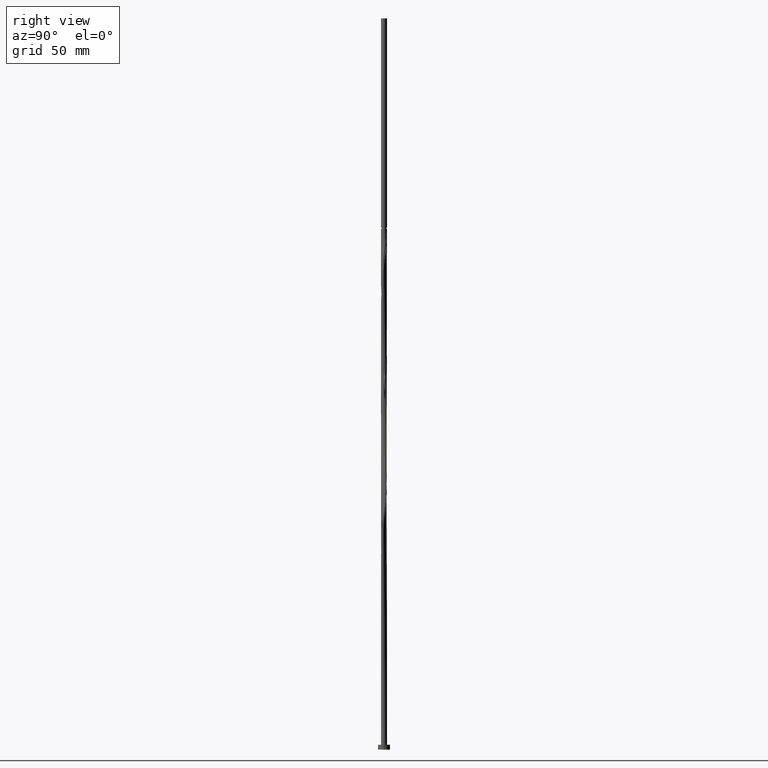
[diagram: clean part render]
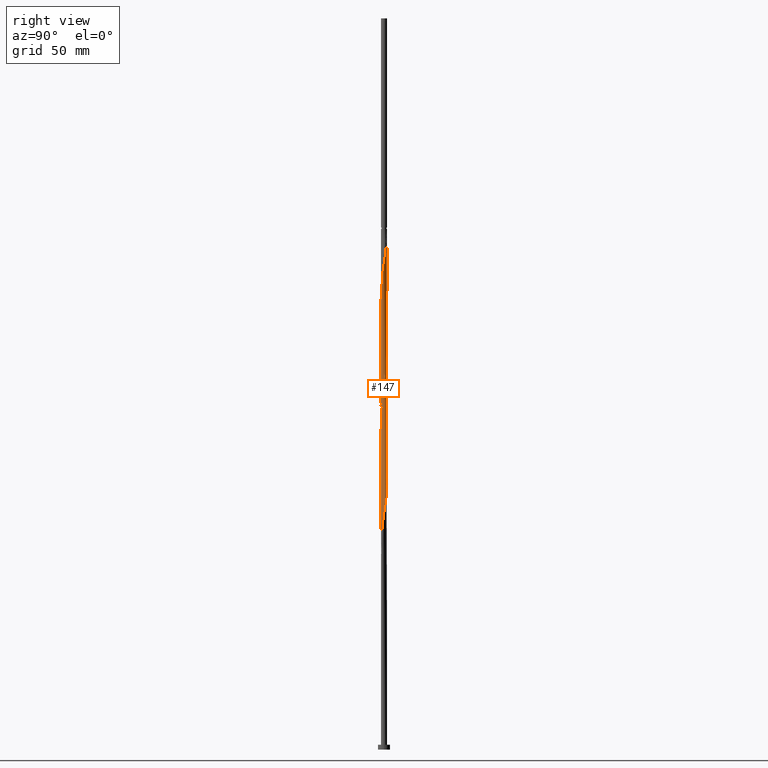
[diagram: same view with one face highlighted and labeled with its STEP entity id]
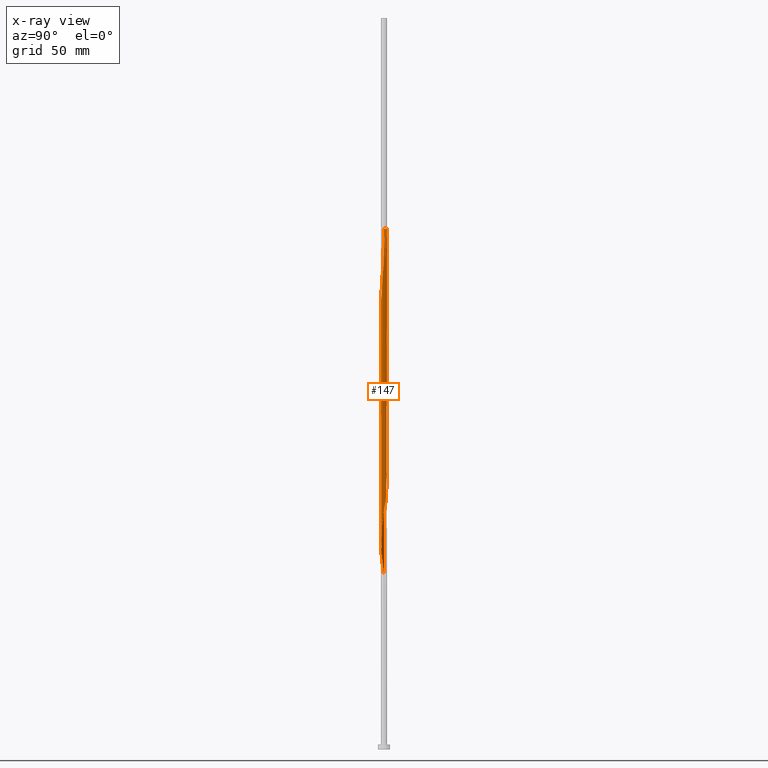
[diagram: x-ray of the same camera — body ghosted, the highlighted face saturated]
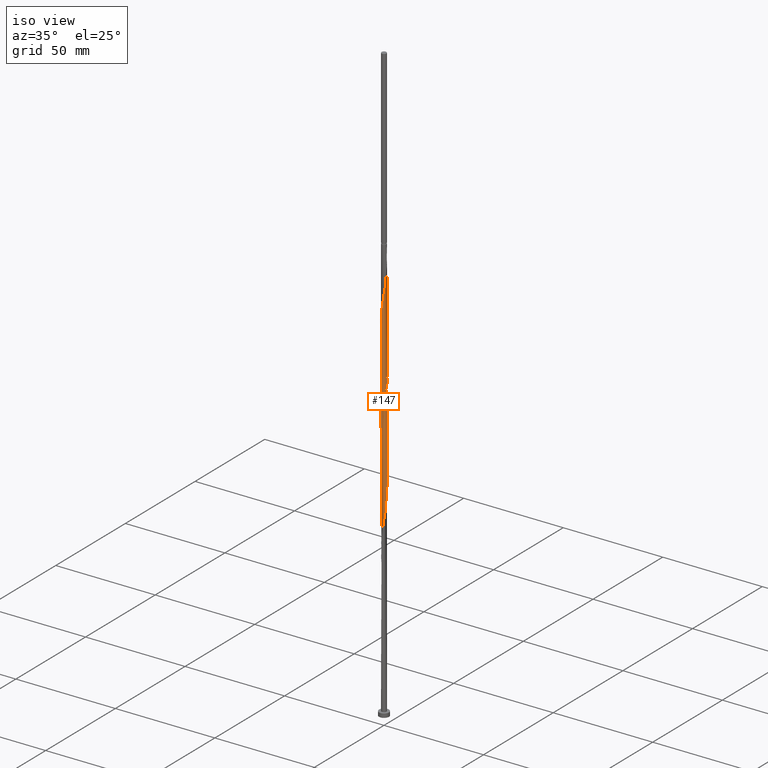
[diagram: same view with one face highlighted and labeled with its STEP entity id]
A machine part, right view. The second image highlights one B-rep face of the part: STEP entity #147.
The next image is the same camera in x-ray: the body ghosted, the highlighted face saturated — about 0% of this face is hidden behind the body in this view.
A second angle (iso view) of the same face is appended — the face is thin or edge-on in the first view.
In plain terms, the highlighted cylindrical surface (bore or boss wall) has radius 1.25 mm, axis along (-0, -0, -1).
Its self-contained STEP definition (entity closure, byte-faithful):
#4 = CARTESIAN_POINT ( 'NONE',  ( -0.3867712106542924855, -1.196972960074379477, 134.6808331352045229 ) ) ;
#14 = CARTESIAN_POINT ( 'NONE',  ( -1.196972960074379477, 0.3867712106542924855, 121.5558331352044945 ) ) ;
#19 = CARTESIAN_POINT ( 'NONE',  ( -1.250000000000000000, -5.391935684651194892E-16, 176.6678502131105688 ) ) ;
#23 = CARTESIAN_POINT ( 'NONE',  ( 0.7556207566157803202, 0.9957596457837581960, 158.1183331352045514 ) ) ;
#24 = CARTESIAN_POINT ( 'NONE',  ( 0.1107225078990204115, 1.253027039925620034, 110.3058331352045087 ) ) ;
#26 = CARTESIAN_POINT ( 'NONE',  ( 0.7556207566157806532, -0.9957596457837601944, 191.8683331352045229 ) ) ;
#33 = CARTESIAN_POINT ( 'NONE',  ( 1.112834696026721470, 0.5692968815294134899, 154.3683331352045514 ) ) ;
#34 = CARTESIAN_POINT ( 'NONE',  ( 1.250000000000000000, -1.513100290744677813E-15, 150.4178502131105404 ) ) ;
#63 = CARTESIAN_POINT ( 'NONE',  ( -0.8678159233401294692, -0.9106216336863119931, 78.43083313520453714 ) ) ;
#68 = ORIENTED_EDGE ( 'NONE', *, *, #716, .F. ) ;
#82 = CIRCLE ( 'NONE', #1542, 1.249999999999985789 ) ;
#84 = VERTEX_POINT ( 'NONE', #1481 ) ;
#105 = FACE_OUTER_BOUND ( 'NONE', #127, .T. ) ;
#116 = CARTESIAN_POINT ( 'NONE',  ( -0.6946832383535922473, -1.048690342708838319, 181.5558331352044377 ) ) ;
#122 = CARTESIAN_POINT ( 'NONE',  ( 0.03007788792010840720, -1.249638075867675280, 137.4933331352045229 ) ) ;
#126 = CARTESIAN_POINT ( 'NONE',  ( -0.1708782837392381071, -1.246249111809732080, 185.3058331352045229 ) ) ;
#127 = EDGE_LOOP ( 'NONE', ( #801, #1216, #761, #1506, #519, #68, #655, #498 ) ) ;
#132 = CARTESIAN_POINT ( 'NONE',  ( 0.5692968815294134899, -1.112834696026721470, 141.2433331352044945 ) ) ;
#141 = CARTESIAN_POINT ( 'NONE',  ( 1.250000000000000000, -1.513100290744678010E-15, 150.4178502131105404 ) ) ;
#147 = ADVANCED_FACE ( 'NONE', ( #105 ), #799, .T. ) ;
#151 = CARTESIAN_POINT ( 'NONE',  ( 1.246249111809730747, 0.1708782837392372467, 151.5558331352044945 ) ) ;
#152 = CARTESIAN_POINT ( 'NONE',  ( 1.196972960074379477, -0.3867712106542925965, 147.8058331352044945 ) ) ;
#160 = CARTESIAN_POINT ( 'NONE',  ( -0.2487468592766895192, 1.225000000000332268, 214.3683331352045229 ) ) ;
#161 = CARTESIAN_POINT ( 'NONE',  ( -0.3073944042222372386, 1.211614080577168462, 113.1183331352045087 ) ) ;
#163 = CARTESIAN_POINT ( 'NONE',  ( -1.196972960074381920, -0.3867712106542926520, 175.9308331352044661 ) ) ;
#169 = CARTESIAN_POINT ( 'NONE',  ( 0.8678159233401294692, 0.9106216336863117711, 157.1808331352044945 ) ) ;
#172 = CARTESIAN_POINT ( 'NONE',  ( 1.246249111809732080, -0.1708782837392381904, 198.4308331352045229 ) ) ;
#178 = CARTESIAN_POINT ( 'NONE',  ( 1.138935308977792271, -0.5150984002728619116, 94.36833313520452293 ) ) ;
#185 = CARTESIAN_POINT ( 'NONE',  ( 0.9957596457837581960, -0.7556207566157803202, 92.49333313520453714 ) ) ;
#193 = CARTESIAN_POINT ( 'NONE',  ( 0.6946832383535906930, -1.048690342708837209, 89.68083313520450872 ) ) ;
#195 = DIRECTION ( 'NONE',  ( -0.000000000000000000, -0.000000000000000000, -1.000000000000000000 ) ) ;
#263 = CARTESIAN_POINT ( 'NONE',  ( 0.5150984002728620226, -1.138935308977793603, 189.9933331352045229 ) ) ;
#269 = CARTESIAN_POINT ( 'NONE',  ( 0.1708782837392373299, -1.246249111809730747, 138.4308331352044945 ) ) ;
#272 = CARTESIAN_POINT ( 'NONE',  ( -1.080897657881206397, -0.6434255898914315042, 177.8058331352045229 ) ) ;
#277 = CARTESIAN_POINT ( 'NONE',  ( 0.9582531330244833390, 0.8026524360199517316, 156.2433331352044945 ) ) ;
#285 = CARTESIAN_POINT ( 'NONE',  ( -0.8026524360199517316, 0.9582531330244832279, 169.3683331352045229 ) ) ;
#286 = CARTESIAN_POINT ( 'NONE',  ( -0.8026524360199517316, 0.9582531330244832279, 116.8683331352045371 ) ) ;
#290 = VECTOR ( 'NONE', #1805, 1000.000000000000000 ) ;
#296 = CARTESIAN_POINT ( 'NONE',  ( -1.080897657881204621, 0.6434255898914308380, 119.6808331352045229 ) ) ;
#303 = CARTESIAN_POINT ( 'NONE',  ( -0.03007788792010857026, 1.249638075867675280, 163.7433331352045229 ) ) ;
#306 = CARTESIAN_POINT ( 'NONE',  ( 0.1708782837392383291, 1.246249111809732080, 211.5558331352045514 ) ) ;
#319 = CARTESIAN_POINT ( 'NONE',  ( 0.1708782837392373299, -1.246249111809730747, 85.93083313520452293 ) ) ;
#330 = CARTESIAN_POINT ( 'NONE',  ( 1.246249111809730747, 0.1708782837392372467, 99.05583313520452293 ) ) ;
#334 = EDGE_CURVE ( 'NONE', #530, #1654, #1634, .T. ) ;
#365 = VERTEX_POINT ( 'NONE', #160 ) ;
#376 = VERTEX_POINT ( 'NONE', #1403 ) ;
#396 = CARTESIAN_POINT ( 'NONE',  ( 0.6434255898914315042, -1.080897657881206397, 190.9308331352044945 ) ) ;
#397 =( BOUNDED_CURVE ( )  B_SPLINE_CURVE ( 2, ( #141, #1262, #404, #152, #962, #415, #556, #707, #1520, #862, #132, #825, #981, #269, #122, #991, #1670, #4, #1244, #1000, #564, #1144, #1546, #843, #1795, #1387, #423, #1404, #1679, #1272, #1537, #14, #547, #296, #1253, #690, #286, #1116, #1413, #854, #161, #717, #1282, #24, #581, #1696, #1292, #1017, #450, #469, #1033, #621, #870, #1583, #1589, #330, #886, #1041, #1162, #1428, #178, #757, #185, #733, #1420, #193, #1443, #1574, #1026, #319, #748, #1434, #1324, #740, #892, #591, #1596, #63, #1185, #1450, #1721, #1306, #1735, #1316, #484, #599, #1176 ),
 .UNSPECIFIED., .F., .F. ) 
 B_SPLINE_CURVE_WITH_KNOTS ( ( 3, 2, 2, 2, 2, 2, 2, 2, 2, 2, 2, 2, 2, 2, 2, 2, 2, 2, 2, 2, 2, 2, 2, 2, 2, 2, 2, 2, 2, 2, 2, 2, 2, 2, 2, 2, 2, 2, 2, 2, 2, 2, 2, 3 ),
 ( 0.5545303401299220836, 0.5625000000000000000, 0.5714285714285713969, 0.5803571428571429047, 0.5892857142857143016, 0.5982142857142856984, 0.6071428571428570953, 0.6160714285714286031, 0.6250000000000000000, 0.6339285714285713969, 0.6428571428571429047, 0.6517857142857143016, 0.6607142857142856984, 0.6696428571428570953, 0.6785714285714286031, 0.6875000000000000000, 0.6964285714285713969, 0.7053571428571429047, 0.7142857142857143016, 0.7232142857142856984, 0.7321428571428570953, 0.7410714285714286031, 0.7500000000000000000, 0.7589285714285713969, 0.7678571428571429047, 0.7767857142857143016, 0.7857142857142856984, 0.7946428571428570953, 0.8035714285714286031, 0.8125000000000000000, 0.8214285714285713969, 0.8303571428571429047, 0.8392857142857143016, 0.8482142857142856984, 0.8571428571428570953, 0.8660714285714286031, 0.8750000000000000000, 0.8839285714285713969, 0.8928571428571429047, 0.9017857142857143016, 0.9107142857142856984, 0.9196428571428570953, 0.9285714285714286031, 0.9295303401299220836 ),
 .UNSPECIFIED. ) 
 CURVE ( )  GEOMETRIC_REPRESENTATION_ITEM ( )  RATIONAL_B_SPLINE_CURVE ( ( 0.9079949616362252840, 0.9039886423360883327, 0.9090909090909551349, 0.9033747362666300074, 0.9090909090909551349, 0.9033747362666300074, 0.9090909090909551349, 0.9033747362666300074, 0.9090909090909551349, 0.9033747362666300074, 0.9090909090909551349, 0.9033747362666300074, 0.9090909090909551349, 0.9033747362666300074, 0.9090909090909551349, 0.9033747362666300074, 0.9090909090909551349, 0.9033747362666300074, 0.9090909090909551349, 0.9033747362666300074, 0.9090909090909551349, 0.9033747362666300074, 0.9090909090909551349, 0.9033747362666300074, 0.9090909090909551349, 0.9033747362666300074, 0.9090909090909551349, 0.9033747362666300074, 0.9090909090909551349, 0.9033747362666300074, 0.9090909090909551349, 0.9033747362666300074, 0.9090909090909551349, 0.9033747362666300074, 0.9090909090909551349, 0.9033747362666300074, 0.9090909090909551349, 0.9033747362666300074, 0.9090909090909551349, 0.9033747362666300074, 0.9090909090909551349, 0.9033747362666300074, 0.9090909090909551349, 0.9033747362666300074, 0.9090909090909551349, 0.9033747362666300074, 0.9090909090909551349, 0.9033747362666300074, 0.9090909090909551349, 0.9033747362666300074, 0.9090909090909551349, 0.9033747362666300074, 0.9090909090909551349, 0.9033747362666300074, 0.9090909090909551349, 0.9033747362666300074, 0.9090909090909551349, 0.9033747362666300074, 0.9090909090909551349, 0.9033747362666300074, 0.9090909090909551349, 0.9033747362666300074, 0.9090909090909551349, 0.9033747362666300074, 0.9090909090909551349, 0.9033747362666300074, 0.9090909090909551349, 0.9033747362666300074, 0.9090909090909551349, 0.9033747362666300074, 0.9090909090909551349, 0.9033747362666300074, 0.9090909090909551349, 0.9033747362666300074, 0.9090909090909551349, 0.9033747362666300074, 0.9090909090909551349, 0.9033747362666300074, 0.9090909090909551349, 0.9033747362666300074, 0.9090909090909551349, 0.9033747362666300074, 0.9090909090909551349, 0.9033747362666300074, 0.9090909090909551349, 0.9084770030214969205, 0.9079949616362252840 ) ) 
 REPRESENTATION_ITEM ( '' )  );
#404 = CARTESIAN_POINT ( 'NONE',  ( 1.224999999999999645, -0.2487468592766566566, 148.7433331352044661 ) ) ;
#409 = CARTESIAN_POINT ( 'NONE',  ( 0.9957596457837601944, 0.7556207566157806532, 204.9933331352045229 ) ) ;
#415 = CARTESIAN_POINT ( 'NONE',  ( 1.080897657881204621, -0.6434255898914309491, 145.9308331352044945 ) ) ;
#423 = CARTESIAN_POINT ( 'NONE',  ( -1.211614080577168462, -0.3073944042222370721, 126.2433331352045229 ) ) ;
#430 = CARTESIAN_POINT ( 'NONE',  ( -0.4439105247052368419, 1.176979049344605066, 166.5558331352044661 ) ) ;
#439 = CARTESIAN_POINT ( 'NONE',  ( -0.3073944042222372386, 1.211614080577168462, 165.6183331352045229 ) ) ;
#442 = CARTESIAN_POINT ( 'NONE',  ( 0.3073944042222380713, 1.211614080577169350, 210.6183331352044945 ) ) ;
#450 = CARTESIAN_POINT ( 'NONE',  ( 0.7556207566157803202, 0.9957596457837581960, 105.6183331352045371 ) ) ;
#452 = CARTESIAN_POINT ( 'NONE',  ( -0.4439105247052376746, -1.176979049344606620, 183.4308331352045798 ) ) ;
#469 = CARTESIAN_POINT ( 'NONE',  ( 0.8678159233401294692, 0.9106216336863117711, 104.6808331352044945 ) ) ;
#471 = CARTESIAN_POINT ( 'NONE',  ( -1.250000000000000000, 0.000000000000000000, 301.0000000000000000 ) ) ;
#484 = CARTESIAN_POINT ( 'NONE',  ( -1.249638075867675280, -0.03007788792010846271, 71.86833313520455135 ) ) ;
#498 = ORIENTED_EDGE ( 'NONE', *, *, #334, .F. ) ;
#517 = CARTESIAN_POINT ( 'NONE',  ( -1.250000000000000000, -5.391935684651194892E-16, 176.6678502131105688 ) ) ;
#519 = ORIENTED_EDGE ( 'NONE', *, *, #1551, .F. ) ;
#530 = VERTEX_POINT ( 'NONE', #19 ) ;
#547 = CARTESIAN_POINT ( 'NONE',  ( -1.138935308977792271, 0.5150984002728618005, 120.6183331352045371 ) ) ;
#550 = CARTESIAN_POINT ( 'NONE',  ( -0.8026524360199528418, -0.9582531330244842271, 180.6183331352045514 ) ) ;
#556 = CARTESIAN_POINT ( 'NONE',  ( 0.9957596457837581960, -0.7556207566157803202, 144.9933331352045798 ) ) ;
#563 = CARTESIAN_POINT ( 'NONE',  ( -1.080897657881204621, 0.6434255898914308380, 172.1808331352045229 ) ) ;
#564 = CARTESIAN_POINT ( 'NONE',  ( -0.7556207566157802091, -0.9957596457837581960, 131.8683331352045798 ) ) ;
#580 = CARTESIAN_POINT ( 'NONE',  ( -0.9957596457837584181, 0.7556207566157800981, 171.2433331352045798 ) ) ;
#581 = CARTESIAN_POINT ( 'NONE',  ( 0.2487468592766567677, 1.224999999999999645, 109.3683331352045229 ) ) ;
#583 = CARTESIAN_POINT ( 'NONE',  ( 1.112834696026722581, -0.5692968815294148222, 195.6183331352045229 ) ) ;
#590 = CARTESIAN_POINT ( 'NONE',  ( 1.176979049344605066, 0.4439105247052363423, 153.4308331352044661 ) ) ;
#591 = CARTESIAN_POINT ( 'NONE',  ( -0.6434255898914309491, -1.080897657881204621, 80.30583313520449451 ) ) ;
#593 = CARTESIAN_POINT ( 'NONE',  ( -0.1107225078990183159, 1.253027039925622033, 213.4308331352044945 ) ) ;
#599 = CARTESIAN_POINT ( 'NONE',  ( -1.250000000000000000, -0.01504112145798668781, 71.76821290133568709 ) ) ;
#611 = VECTOR ( 'NONE', #195, 1000.000000000000000 ) ;
#621 = CARTESIAN_POINT ( 'NONE',  ( 1.048690342708837209, 0.6946832383535905819, 102.8058331352045229 ) ) ;
#652 = CARTESIAN_POINT ( 'NONE',  ( -1.250000000000000000, 1.388096937501899354E-15, 71.66785021311058301 ) ) ;
#655 = ORIENTED_EDGE ( 'NONE', *, *, #716, .T. ) ;
#672 = DIRECTION ( 'NONE',  ( -0.000000000000000000, -0.000000000000000000, -1.000000000000000000 ) ) ;
#674 = CARTESIAN_POINT ( 'NONE',  ( -1.250000000000001776, -8.545005341073456909E-16, 173.3188160572984486 ) ) ;
#685 = CARTESIAN_POINT ( 'NONE',  ( -0.9106216336863137695, -0.8678159233401304684, 179.6808331352044377 ) ) ;
#690 = CARTESIAN_POINT ( 'NONE',  ( -0.9106216336863119931, 0.8678159233401292472, 117.8058331352045087 ) ) ;
#702 = CARTESIAN_POINT ( 'NONE',  ( 1.250000000000000000, 1.530808498934191571E-16, 301.0000000000000000 ) ) ;
#707 = CARTESIAN_POINT ( 'NONE',  ( 0.9106216336863119931, -0.8678159233401294692, 144.0558331352044661 ) ) ;
#716 = EDGE_CURVE ( 'NONE', #376, #1654, #1256, .T. ) ;
#717 = CARTESIAN_POINT ( 'NONE',  ( -0.1708782837392375242, 1.246249111809730747, 112.1808331352045087 ) ) ;
#724 = CARTESIAN_POINT ( 'NONE',  ( -1.249999999999999556, 0.1256297269074045653, 175.8295791341469680 ) ) ;
#726 = CARTESIAN_POINT ( 'NONE',  ( -0.2487468592766895192, 1.225000000000332268, 214.3683331352045229 ) ) ;
#730 = EDGE_CURVE ( 'NONE', #84, #365, #82, .T. ) ;
#733 = CARTESIAN_POINT ( 'NONE',  ( 0.9106216336863119931, -0.8678159233401294692, 91.55583313520450872 ) ) ;
#740 = CARTESIAN_POINT ( 'NONE',  ( -0.3867712106542924855, -1.196972960074379477, 82.18083313520450872 ) ) ;
#748 = CARTESIAN_POINT ( 'NONE',  ( 0.03007788792010840720, -1.249638075867675280, 84.99333313520453714 ) ) ;
#750 = LINE ( 'NONE', #1178, #781 ) ;
#757 = CARTESIAN_POINT ( 'NONE',  ( 1.080897657881204621, -0.6434255898914309491, 93.43083313520452293 ) ) ;
#761 = ORIENTED_EDGE ( 'NONE', *, *, #1051, .F. ) ;
#772 =( BOUNDED_CURVE ( )  B_SPLINE_CURVE ( 2, ( #674, #1514, #1422, #163, #1098, #272, #1247, #685, #550, #116, #1798, #452, #1559, #126, #1108, #1373, #1284, #1653, #263, #396, #26, #828, #948, #1568, #583, #1662, #1146, #172, #956, #1505, #1002, #819, #965, #810, #409, #1381, #1523, #1642, #1390, #1699, #442, #306, #864, #593, #726 ),
 .UNSPECIFIED., .F., .F. ) 
 B_SPLINE_CURVE_WITH_KNOTS ( ( 3, 2, 2, 2, 2, 2, 2, 2, 2, 2, 2, 2, 2, 2, 2, 2, 2, 2, 2, 2, 2, 2, 3 ),
 ( 0.5545303401299221946, 0.5625000000000000000, 0.5714285714285713969, 0.5803571428571427937, 0.5892857142857143016, 0.5982142857142856984, 0.6071428571428572063, 0.6160714285714286031, 0.6250000000000000000, 0.6339285714285713969, 0.6428571428571427937, 0.6517857142857141906, 0.6607142857142855874, 0.6696428571428570953, 0.6785714285714284921, 0.6874999999999998890, 0.6964285714285712858, 0.7053571428571426827, 0.7142857142857141906, 0.7232142857142855874, 0.7321428571428570953, 0.7410714285714284921, 0.7499999999999998890 ),
 .UNSPECIFIED. ) 
 CURVE ( )  GEOMETRIC_REPRESENTATION_ITEM ( )  RATIONAL_B_SPLINE_CURVE ( ( 0.9079949616362316123, 0.9039886423360947720, 0.9090909090909616852, 0.9033747362666364467, 0.9090909090909616852, 0.9033747362666364467, 0.9090909090909616852, 0.9033747362666364467, 0.9090909090909616852, 0.9033747362666364467, 0.9090909090909616852, 0.9033747362666364467, 0.9090909090909616852, 0.9033747362666364467, 0.9090909090909616852, 0.9033747362666364467, 0.9090909090909616852, 0.9033747362666364467, 0.9090909090909616852, 0.9033747362666364467, 0.9090909090909616852, 0.9033747362666364467, 0.9090909090909616852, 0.9033747362666364467, 0.9090909090909616852, 0.9033747362666364467, 0.9090909090909616852, 0.9033747362666364467, 0.9090909090909616852, 0.9033747362666364467, 0.9090909090909616852, 0.9033747362666364467, 0.9090909090909616852, 0.9033747362666364467, 0.9090909090909616852, 0.9033747362666364467, 0.9090909090909616852, 0.9033747362666364467, 0.9090909090909616852, 0.9033747362666364467, 0.9090909090909616852, 0.9033747362666364467, 0.9090909090909616852, 0.9033747362666365577, 0.9090909090909615742 ) ) 
 REPRESENTATION_ITEM ( '' )  );
#781 = VECTOR ( 'NONE', #1063, 1000.000000000000000 ) ;
#799 = CYLINDRICAL_SURFACE ( 'NONE', #1058, 1.250000000000000000 ) ;
#801 = ORIENTED_EDGE ( 'NONE', *, *, #1760, .F. ) ;
#810 = CARTESIAN_POINT ( 'NONE',  ( 1.080897657881206397, 0.6434255898914312821, 204.0558331352045229 ) ) ;
#817 = CARTESIAN_POINT ( 'NONE',  ( 0.000000000000000000, 0.000000000000000000, 301.0000000000000000 ) ) ;
#819 = CARTESIAN_POINT ( 'NONE',  ( 1.196972960074381920, 0.3867712106542924855, 202.1808331352045229 ) ) ;
#825 = CARTESIAN_POINT ( 'NONE',  ( 0.4439105247052364533, -1.176979049344605066, 140.3058331352044661 ) ) ;
#828 = CARTESIAN_POINT ( 'NONE',  ( 0.8678159233401304684, -0.9106216336863137695, 192.8058331352045514 ) ) ;
#837 = CARTESIAN_POINT ( 'NONE',  ( 0.000000000000000000, 0.000000000000000000, 214.3683331352044945 ) ) ;
#843 = CARTESIAN_POINT ( 'NONE',  ( -1.048690342708836987, -0.6946832383535906930, 129.0558331352045229 ) ) ;
#854 = CARTESIAN_POINT ( 'NONE',  ( -0.4439105247052368419, 1.176979049344605066, 114.0558331352044803 ) ) ;
#861 = CARTESIAN_POINT ( 'NONE',  ( -1.196972960074379477, 0.3867712106542924855, 174.0558331352044661 ) ) ;
#862 = CARTESIAN_POINT ( 'NONE',  ( 0.6946832383535906930, -1.048690342708837209, 142.1808331352045514 ) ) ;
#864 = CARTESIAN_POINT ( 'NONE',  ( 0.03007788792010909068, 1.249638075867676834, 212.4933331352044661 ) ) ;
#870 = CARTESIAN_POINT ( 'NONE',  ( 1.112834696026721470, 0.5692968815294134899, 101.8683331352045514 ) ) ;
#886 = CARTESIAN_POINT ( 'NONE',  ( 1.249638075867675280, 0.03007788792010835516, 98.11833313520453714 ) ) ;
#892 = CARTESIAN_POINT ( 'NONE',  ( -0.5150984002728618005, -1.138935308977792271, 81.24333313520450872 ) ) ;
#948 = CARTESIAN_POINT ( 'NONE',  ( 0.9582531330244842271, -0.8026524360199528418, 193.7433331352044945 ) ) ;
#956 = CARTESIAN_POINT ( 'NONE',  ( 1.249638075867677056, -0.03007788792010902129, 199.3683331352045229 ) ) ;
#962 = CARTESIAN_POINT ( 'NONE',  ( 1.138935308977792271, -0.5150984002728619116, 146.8683331352045229 ) ) ;
#965 = CARTESIAN_POINT ( 'NONE',  ( 1.138935308977793603, 0.5150984002728619116, 203.1183331352044661 ) ) ;
#970 = CARTESIAN_POINT ( 'NONE',  ( 0.3867712106542925965, 1.196972960074379477, 160.9308331352044661 ) ) ;
#981 = CARTESIAN_POINT ( 'NONE',  ( 0.3073944042222369055, -1.211614080577168462, 139.3683331352045514 ) ) ;
#990 = CARTESIAN_POINT ( 'NONE',  ( 1.250000000000000000, -1.513100290744678010E-15, 150.4178502131105404 ) ) ;
#991 = CARTESIAN_POINT ( 'NONE',  ( -0.1107225078990205919, -1.253027039925620034, 136.5558331352045229 ) ) ;
#999 = CARTESIAN_POINT ( 'NONE',  ( -0.6946832383535906930, 1.048690342708836987, 168.4308331352045229 ) ) ;
#1000 = CARTESIAN_POINT ( 'NONE',  ( -0.6434255898914309491, -1.080897657881204621, 132.8058331352044377 ) ) ;
#1002 = CARTESIAN_POINT ( 'NONE',  ( 1.225000000000001643, 0.2487468592766563236, 201.2433331352044945 ) ) ;
#1009 = CARTESIAN_POINT ( 'NONE',  ( -0.9106216336863119931, 0.8678159233401292472, 170.3058331352044661 ) ) ;
#1017 = CARTESIAN_POINT ( 'NONE',  ( 0.6434255898914310601, 1.080897657881204621, 106.5558331352045514 ) ) ;
#1026 = CARTESIAN_POINT ( 'NONE',  ( 0.3073944042222369055, -1.211614080577168462, 86.86833313520450872 ) ) ;
#1033 = CARTESIAN_POINT ( 'NONE',  ( 0.9582531330244833390, 0.8026524360199517316, 103.7433331352045087 ) ) ;
#1041 = CARTESIAN_POINT ( 'NONE',  ( 1.253027039925620034, -0.1107225078990206335, 97.18083313520450872 ) ) ;
#1051 = EDGE_CURVE ( 'NONE', #1374, #365, #772, .T. ) ;
#1058 = AXIS2_PLACEMENT_3D ( 'NONE', #817, #672, #1219 ) ;
#1063 = DIRECTION ( 'NONE',  ( -0.000000000000000000, -0.000000000000000000, -1.000000000000000000 ) ) ;
#1098 = CARTESIAN_POINT ( 'NONE',  ( -1.138935308977793603, -0.5150984002728620226, 176.8683331352044377 ) ) ;
#1108 = CARTESIAN_POINT ( 'NONE',  ( -0.03007788792010891027, -1.249638075867677056, 186.2433331352044377 ) ) ;
#1116 = CARTESIAN_POINT ( 'NONE',  ( -0.6946832383535906930, 1.048690342708836987, 115.9308331352045229 ) ) ;
#1126 = CARTESIAN_POINT ( 'NONE',  ( 1.250000000000000000, 0.01504112145798656985, 150.5182129013356587 ) ) ;
#1143 = CARTESIAN_POINT ( 'NONE',  ( -1.224999999999999645, 0.2487468592766564901, 174.9933331352045229 ) ) ;
#1144 = CARTESIAN_POINT ( 'NONE',  ( -0.8678159233401294692, -0.9106216336863119931, 130.9308331352045229 ) ) ;
#1146 = CARTESIAN_POINT ( 'NONE',  ( 1.211614080577169350, -0.3073944042222380713, 197.4933331352044661 ) ) ;
#1152 = CARTESIAN_POINT ( 'NONE',  ( 0.2487468592766567677, 1.224999999999999645, 161.8683331352045514 ) ) ;
#1162 = CARTESIAN_POINT ( 'NONE',  ( 1.224999999999999645, -0.2487468592766566566, 96.24333313520450872 ) ) ;
#1176 = CARTESIAN_POINT ( 'NONE',  ( -1.250000000000000000, 1.388096937501899354E-15, 71.66785021311058301 ) ) ;
#1178 = CARTESIAN_POINT ( 'NONE',  ( -1.250000000000000000, 0.000000000000000000, 301.0000000000000000 ) ) ;
#1185 = CARTESIAN_POINT ( 'NONE',  ( -0.9582531330244832279, -0.8026524360199517316, 77.49333313520452293 ) ) ;
#1216 = ORIENTED_EDGE ( 'NONE', *, *, #730, .T. ) ;
#1219 = DIRECTION ( 'NONE',  ( -1.000000000000000000, 0.000000000000000000, 0.000000000000000000 ) ) ;
#1244 = CARTESIAN_POINT ( 'NONE',  ( -0.5150984002728618005, -1.138935308977792271, 133.7433331352045229 ) ) ;
#1247 = CARTESIAN_POINT ( 'NONE',  ( -0.9957596457837601944, -0.7556207566157807642, 178.7433331352044945 ) ) ;
#1253 = CARTESIAN_POINT ( 'NONE',  ( -0.9957596457837584181, 0.7556207566157800981, 118.7433331352045514 ) ) ;
#1256 = LINE ( 'NONE', #702, #290 ) ;
#1262 = CARTESIAN_POINT ( 'NONE',  ( 1.249999999999999778, -0.1256297269074031220, 149.5795791341469680 ) ) ;
#1266 = DIRECTION ( 'NONE',  ( -1.000000000000000000, 0.000000000000000000, 0.000000000000000000 ) ) ;
#1272 = CARTESIAN_POINT ( 'NONE',  ( -1.253027039925620034, 0.1107225078990204670, 123.4308331352045229 ) ) ;
#1281 = CARTESIAN_POINT ( 'NONE',  ( -0.5692968815294137119, 1.112834696026721470, 167.4933331352044945 ) ) ;
#1282 = CARTESIAN_POINT ( 'NONE',  ( -0.03007788792010857026, 1.249638075867675280, 111.2433331352045514 ) ) ;
#1284 = CARTESIAN_POINT ( 'NONE',  ( 0.2487468592766564623, -1.225000000000001643, 188.1183331352044377 ) ) ;
#1291 = CARTESIAN_POINT ( 'NONE',  ( 0.1107225078990204115, 1.253027039925620034, 162.8058331352045798 ) ) ;
#1292 = CARTESIAN_POINT ( 'NONE',  ( 0.5150984002728620226, 1.138935308977792049, 107.4933331352045229 ) ) ;
#1306 = CARTESIAN_POINT ( 'NONE',  ( -1.176979049344605066, -0.4439105247052364533, 74.68083313520453714 ) ) ;
#1316 = CARTESIAN_POINT ( 'NONE',  ( -1.246249111809730747, -0.1708782837392374410, 72.80583313520448030 ) ) ;
#1324 = CARTESIAN_POINT ( 'NONE',  ( -0.2487468592766566011, -1.224999999999999645, 83.11833313520449451 ) ) ;
#1371 = VERTEX_POINT ( 'NONE', #652 ) ;
#1373 = CARTESIAN_POINT ( 'NONE',  ( 0.1107225078990202172, -1.253027039925622033, 187.1808331352044661 ) ) ;
#1374 = VERTEX_POINT ( 'NONE', #1777 ) ;
#1381 = CARTESIAN_POINT ( 'NONE',  ( 0.9106216336863138805, 0.8678159233401303574, 205.9308331352045229 ) ) ;
#1387 = CARTESIAN_POINT ( 'NONE',  ( -1.176979049344605066, -0.4439105247052364533, 127.1808331352045087 ) ) ;
#1390 = CARTESIAN_POINT ( 'NONE',  ( 0.5692968815294148222, 1.112834696026722581, 208.7433331352044945 ) ) ;
#1403 = CARTESIAN_POINT ( 'NONE',  ( 1.250000000000000000, 1.530808498934191571E-16, 214.3683331352045229 ) ) ;
#1404 = CARTESIAN_POINT ( 'NONE',  ( -1.246249111809730747, -0.1708782837392374410, 125.3058331352044661 ) ) ;
#1412 = CARTESIAN_POINT ( 'NONE',  ( 1.048690342708837209, 0.6946832383535905819, 155.3058331352044945 ) ) ;
#1413 = CARTESIAN_POINT ( 'NONE',  ( -0.5692968815294137119, 1.112834696026721470, 114.9933331352045798 ) ) ;
#1419 = CARTESIAN_POINT ( 'NONE',  ( 0.6434255898914310601, 1.080897657881204621, 159.0558331352044092 ) ) ;
#1420 = CARTESIAN_POINT ( 'NONE',  ( 0.8026524360199517316, -0.9582531330244833390, 90.61833313520452293 ) ) ;
#1422 = CARTESIAN_POINT ( 'NONE',  ( -1.225000000000001643, -0.2487468592766565456, 174.9933331352045798 ) ) ;
#1428 = CARTESIAN_POINT ( 'NONE',  ( 1.196972960074379477, -0.3867712106542925965, 95.30583313520449451 ) ) ;
#1434 = CARTESIAN_POINT ( 'NONE',  ( -0.1107225078990205919, -1.253027039925620034, 84.05583313520449451 ) ) ;
#1443 = CARTESIAN_POINT ( 'NONE',  ( 0.5692968815294134899, -1.112834696026721470, 88.74333313520456556 ) ) ;
#1450 = CARTESIAN_POINT ( 'NONE',  ( -1.048690342708836987, -0.6946832383535906930, 76.55583313520450872 ) ) ;
#1452 = LINE ( 'NONE', #471, #611 ) ;
#1481 = CARTESIAN_POINT ( 'NONE',  ( -1.249999999999985789, 0.000000000000000000, 214.3683331352044945 ) ) ;
#1505 = CARTESIAN_POINT ( 'NONE',  ( 1.253027039925622033, 0.1107225078990201755, 200.3058331352044377 ) ) ;
#1506 = ORIENTED_EDGE ( 'NONE', *, *, #1709, .T. ) ;
#1514 = CARTESIAN_POINT ( 'NONE',  ( -1.250000000000001998, -0.1256297269074045375, 174.1570871362620778 ) ) ;
#1520 = CARTESIAN_POINT ( 'NONE',  ( 0.8026524360199517316, -0.9582531330244833390, 143.1183331352045229 ) ) ;
#1523 = CARTESIAN_POINT ( 'NONE',  ( 0.8026524360199528418, 0.9582531330244842271, 206.8683331352044377 ) ) ;
#1537 = CARTESIAN_POINT ( 'NONE',  ( -1.224999999999999645, 0.2487468592766564901, 122.4933331352044945 ) ) ;
#1542 = AXIS2_PLACEMENT_3D ( 'NONE', #837, #1550, #1266 ) ;
#1546 = CARTESIAN_POINT ( 'NONE',  ( -0.9582531330244832279, -0.8026524360199517316, 129.9933331352045229 ) ) ;
#1550 = DIRECTION ( 'NONE',  ( -0.000000000000000000, -0.000000000000000000, -1.000000000000000000 ) ) ;
#1551 = EDGE_CURVE ( 'NONE', #1654, #1371, #397, .T. ) ;
#1555 = CARTESIAN_POINT ( 'NONE',  ( 0.5150984002728620226, 1.138935308977792049, 159.9933331352044945 ) ) ;
#1559 = CARTESIAN_POINT ( 'NONE',  ( -0.3073944042222379602, -1.211614080577169350, 184.3683331352045514 ) ) ;
#1565 = CARTESIAN_POINT ( 'NONE',  ( -0.1708782837392375242, 1.246249111809730747, 164.6808331352044945 ) ) ;
#1568 = CARTESIAN_POINT ( 'NONE',  ( 1.048690342708838319, -0.6946832383535923583, 194.6808331352045514 ) ) ;
#1574 = CARTESIAN_POINT ( 'NONE',  ( 0.4439105247052364533, -1.176979049344605066, 87.80583313520449451 ) ) ;
#1583 = CARTESIAN_POINT ( 'NONE',  ( 1.176979049344605066, 0.4439105247052363423, 100.9308331352044661 ) ) ;
#1589 = CARTESIAN_POINT ( 'NONE',  ( 1.211614080577168462, 0.3073944042222369055, 99.99333313520452293 ) ) ;
#1596 = CARTESIAN_POINT ( 'NONE',  ( -0.7556207566157802091, -0.9957596457837581960, 79.36833313520453714 ) ) ;
#1634 =( BOUNDED_CURVE ( )  B_SPLINE_CURVE ( 2, ( #517, #724, #1143, #861, #1695, #563, #580, #1009, #285, #999, #1281, #430, #439, #1565, #303, #1291, #1152, #970, #1555, #1419, #23, #169, #277, #1412, #33, #590, #1705, #151, #1678, #1126, #990 ),
 .UNSPECIFIED., .F., .F. ) 
 B_SPLINE_CURVE_WITH_KNOTS ( ( 3, 2, 2, 2, 2, 2, 2, 2, 2, 2, 2, 2, 2, 2, 2, 3 ),
 ( 0.4295303401299221391, 0.4375000000000000000, 0.4464285714285714524, 0.4553571428571428492, 0.4642857142857143016, 0.4732142857142856984, 0.4821428571428571508, 0.4910714285714285476, 0.5000000000000000000, 0.5089285714285713969, 0.5178571428571429047, 0.5267857142857143016, 0.5357142857142856984, 0.5446428571428570953, 0.5535714285714286031, 0.5545303401299220836 ),
 .UNSPECIFIED. ) 
 CURVE ( )  GEOMETRIC_REPRESENTATION_ITEM ( )  RATIONAL_B_SPLINE_CURVE ( ( 0.9079949616362252840, 0.9039886423360884438, 0.9090909090909551349, 0.9033747362666300074, 0.9090909090909551349, 0.9033747362666300074, 0.9090909090909551349, 0.9033747362666300074, 0.9090909090909551349, 0.9033747362666300074, 0.9090909090909551349, 0.9033747362666300074, 0.9090909090909551349, 0.9033747362666300074, 0.9090909090909551349, 0.9033747362666300074, 0.9090909090909551349, 0.9033747362666300074, 0.9090909090909551349, 0.9033747362666300074, 0.9090909090909551349, 0.9033747362666300074, 0.9090909090909551349, 0.9033747362666300074, 0.9090909090909551349, 0.9033747362666300074, 0.9090909090909551349, 0.9033747362666300074, 0.9090909090909551349, 0.9084770030214969205, 0.9079949616362252840 ) ) 
 REPRESENTATION_ITEM ( '' )  );
#1642 = CARTESIAN_POINT ( 'NONE',  ( 0.6946832383535923583, 1.048690342708838319, 207.8058331352044945 ) ) ;
#1653 = CARTESIAN_POINT ( 'NONE',  ( 0.3867712106542924855, -1.196972960074381920, 189.0558331352044945 ) ) ;
#1654 = VERTEX_POINT ( 'NONE', #34 ) ;
#1662 = CARTESIAN_POINT ( 'NONE',  ( 1.176979049344606620, -0.4439105247052376746, 196.5558331352045229 ) ) ;
#1670 = CARTESIAN_POINT ( 'NONE',  ( -0.2487468592766566011, -1.224999999999999645, 135.6183331352044661 ) ) ;
#1678 = CARTESIAN_POINT ( 'NONE',  ( 1.249638075867675280, 0.03007788792010835516, 150.6183331352045229 ) ) ;
#1679 = CARTESIAN_POINT ( 'NONE',  ( -1.249638075867675280, -0.03007788792010846271, 124.3683331352045371 ) ) ;
#1695 = CARTESIAN_POINT ( 'NONE',  ( -1.138935308977792271, 0.5150984002728618005, 173.1183331352045229 ) ) ;
#1696 = CARTESIAN_POINT ( 'NONE',  ( 0.3867712106542925965, 1.196972960074379477, 108.4308331352045087 ) ) ;
#1699 = CARTESIAN_POINT ( 'NONE',  ( 0.4439105247052376746, 1.176979049344606620, 209.6808331352044661 ) ) ;
#1705 = CARTESIAN_POINT ( 'NONE',  ( 1.211614080577168462, 0.3073944042222369055, 152.4933331352045798 ) ) ;
#1709 = EDGE_CURVE ( 'NONE', #1374, #1371, #1452, .T. ) ;
#1721 = CARTESIAN_POINT ( 'NONE',  ( -1.112834696026721470, -0.5692968815294137119, 75.61833313520456556 ) ) ;
#1735 = CARTESIAN_POINT ( 'NONE',  ( -1.211614080577168462, -0.3073944042222370721, 73.74333313520452293 ) ) ;
#1760 = EDGE_CURVE ( 'NONE', #84, #530, #750, .T. ) ;
#1777 = CARTESIAN_POINT ( 'NONE',  ( -1.250000000000001776, -8.545005341073457895E-16, 173.3188160572984486 ) ) ;
#1795 = CARTESIAN_POINT ( 'NONE',  ( -1.112834696026721470, -0.5692968815294137119, 128.1183331352045514 ) ) ;
#1798 = CARTESIAN_POINT ( 'NONE',  ( -0.5692968815294147111, -1.112834696026722581, 182.4933331352044377 ) ) ;
#1805 = DIRECTION ( 'NONE',  ( -0.000000000000000000, -0.000000000000000000, -1.000000000000000000 ) ) ;